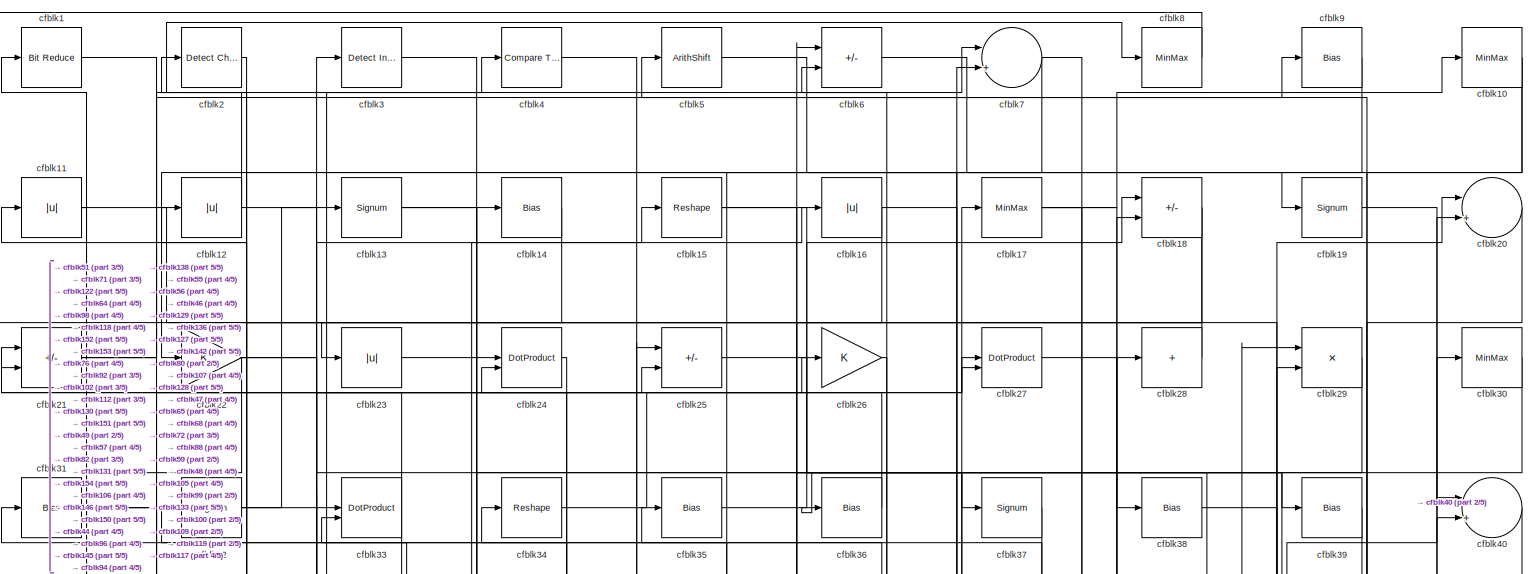
[diagram: root canvas - part 1/5, full width, top band]
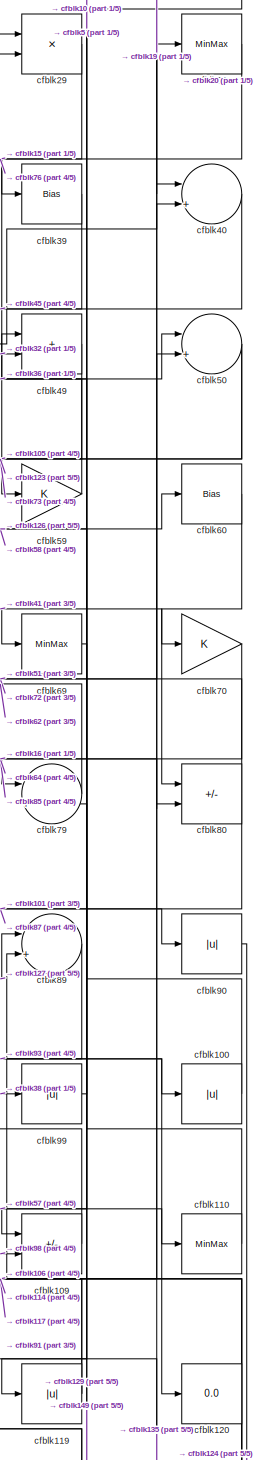
[diagram: root canvas - part 2/5, middle right region]
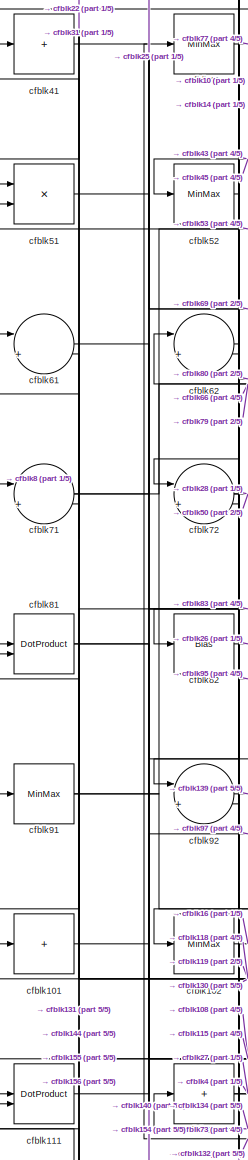
[diagram: root canvas - part 3/5, middle left region]
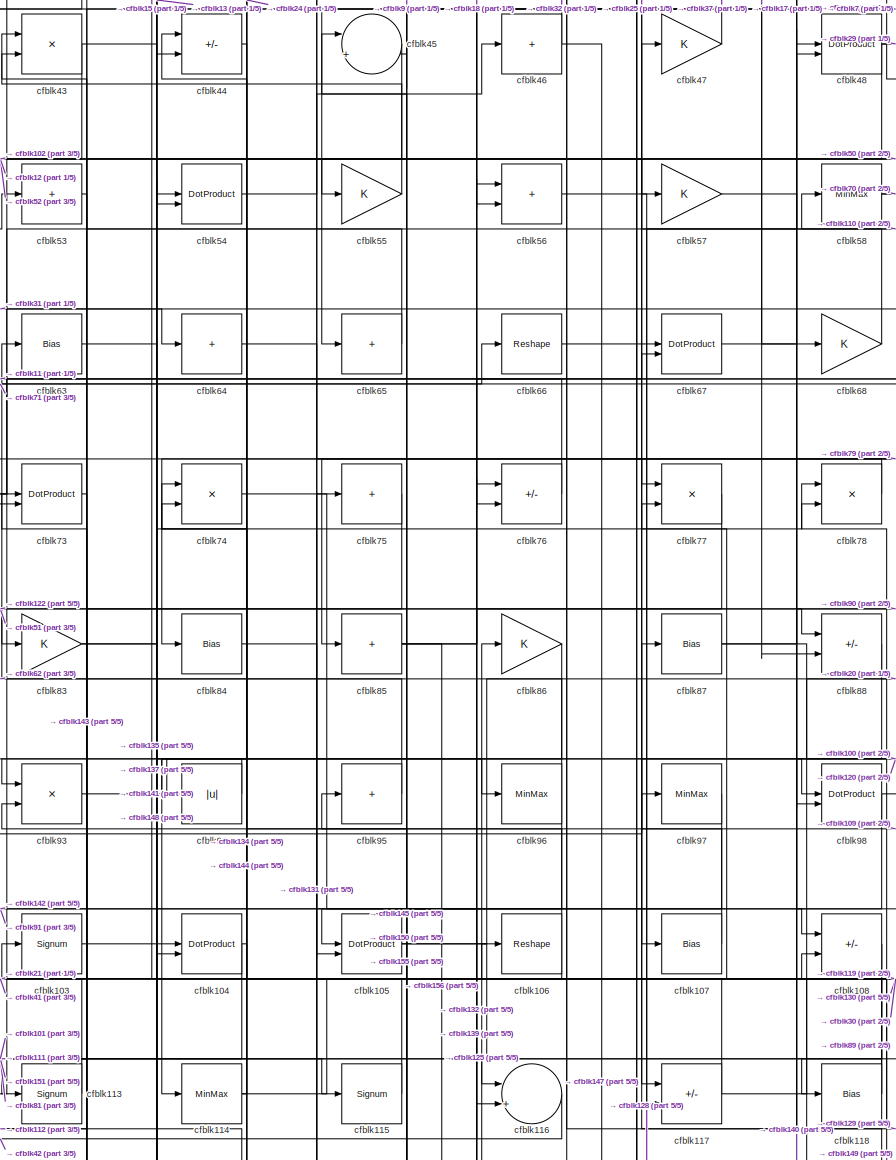
[diagram: root canvas - part 4/5, central region]
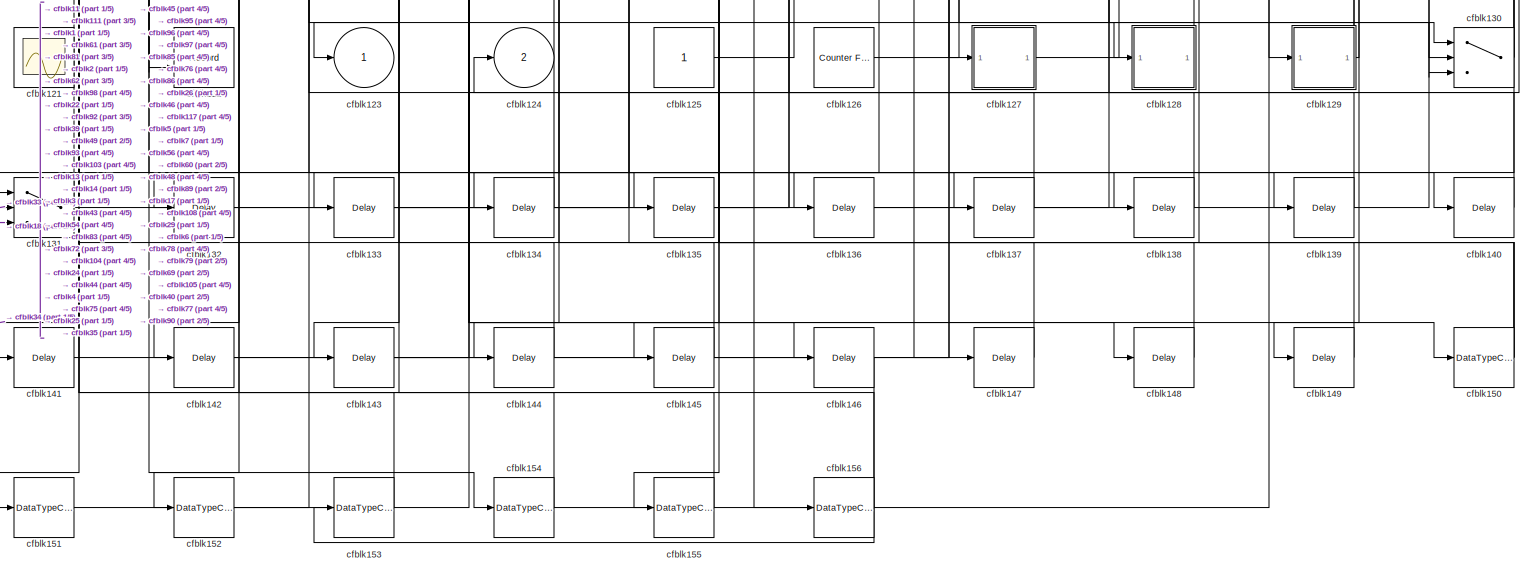
[diagram: root canvas - part 5/5, full width, bottom band]
MODEL slx_2d31b069ee9f
KIND model
CONFIG AbsTol = auto
CONFIG EnableMultiTasking = off
CONFIG FixedStep = auto
CONFIG MaxStep = auto
CONFIG MinStep = auto
CONFIG RelTol = 1e-3
CONFIG SampleTimeConstraint = Unconstrained
CONFIG SolverName = VariableStepAuto
CONFIG StartTime = 0.0
CONFIG StopTime = 10.0
BLOCK [Reference] cfblk1  REF=hdlsllib/Logic and Bit
Operations/Bit Reduce
  SourceBlock = hdlsllib/Logic and Bit\nOperations/Bit Reduce
  SourceType = Bit Reduce
BLOCK [MinMax] cfblk10
BLOCK [Abs] cfblk100
  SaturateOnIntegerOverflow = off
BLOCK [Sum] cfblk101
  IconShape = rectangular
  Inputs = +
BLOCK [MinMax] cfblk102
BLOCK [Signum] cfblk103
BLOCK [DotProduct] cfblk104
  OutDataTypeStr = Inherit: Inherit via internal rule
BLOCK [DotProduct] cfblk105
  OutDataTypeStr = Inherit: Inherit via internal rule
BLOCK [Reshape] cfblk106
BLOCK [Bias] cfblk107
  Bias = 0.0
  SaturateOnIntegerOverflow = off
BLOCK [Sum] cfblk108
  IconShape = rectangular
  Inputs = +-
BLOCK [Sum] cfblk109
  IconShape = rectangular
  Inputs = +-
BLOCK [Abs] cfblk11
  SaturateOnIntegerOverflow = off
BLOCK [MinMax] cfblk110
BLOCK [DotProduct] cfblk111
  OutDataTypeStr = Inherit: Inherit via internal rule
BLOCK [Sum] cfblk112
  IconShape = rectangular
  Inputs = +
BLOCK [Signum] cfblk113
BLOCK [MinMax] cfblk114
BLOCK [Signum] cfblk115
BLOCK [Sum] cfblk116
  Inputs = |++
BLOCK [Sum] cfblk117
  IconShape = rectangular
  Inputs = +-
BLOCK [Bias] cfblk118
  Bias = 0.0
  SaturateOnIntegerOverflow = off
BLOCK [Abs] cfblk119
  SaturateOnIntegerOverflow = off
BLOCK [Abs] cfblk12
  SaturateOnIntegerOverflow = off
BLOCK [Display] cfblk120
  Decimation = 1
BLOCK [Scope] cfblk121
  Floating = on
  NumInputPorts = 1
  ScopeSpecificationString = Simulink.scopes.TimeScopeBlockCfg('CurrentConfiguration', extmgr.ConfigurationSet(extmgr.Configuration('Core','General UI',true,'FigureColor',[0.156862745098039 0.156862745098039 0.156862745098039]),extmgr.Configuration('Core','Source UI',true),extmgr.Configuration('Sources','WiredSimulink',true,'DataLoggingVariableName','ScopeData1','DataLoggingSaveFormat','StructureWithTime','DataLoggingLimitDat...<+2713ch>
BLOCK [Record] cfblk122
  CompatibilityTag = XY
  FileSettingsInternal = {"entries":[{"content":{"excelSettings":{"content":{},"type":"Streamout.ExcelSettings"}},"type":"Streamout.FileSettingStorage","uuid":""}],"packageUris":["http:\/\/schema.mathworks.com\/mf0\/streamout_blocks\/R2020a"],"version":"1.0"}
  Layout = [1 1]
  SignalsInternal = {"entries":[{"content":{"signals":[{"content":{"blockPath":[],"dimensions":[1],"domain":"","lineColor":"#a2142f","plots":[1],"port":1,"signalID":4562,"signalName":"XY Graph:1"},"type":"RecordBlkView.Signal","uuid":""},{"content":{"blockPath":[],"dimensions":[1],"domain":"","lineColor":"#139fff","plots":[1],"port":2,"signalID":4565,"signalName":"XY Graph:2"},"type":"RecordBlkView.Signal","uuid":""}...<+146ch>
  VisualizationBindings = {"xyplotplugin":{"info":[{"series":[{"bindingParametersList":[{"parameter":"X-Axis","signalID":4562,"signalName":"XY Graph:1"},{"parameter":"Y-Axis","signalID":4565,"signalName":"XY Graph:2"}],"seriesID":56059}],"subplotID":1}]}}
  st = -1
BLOCK [Outport] cfblk123
  VectorParamsAs1DForOutWhenUnconnected = off
BLOCK [Outport] cfblk124
  Port = 2
  VectorParamsAs1DForOutWhenUnconnected = off
BLOCK [Constant] cfblk125
  SampleTime = -1
BLOCK [Reference] cfblk126  REF=hdlsllib/Sources/Counter
Free-Running
  SourceBlock = hdlsllib/Sources/Counter\nFree-Running
  SourceType = Counter Free-Running
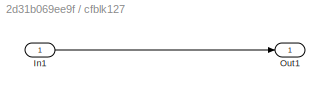
BLOCK [SubSystem] cfblk127
  LibrarySourceBlock = hdlsllib/Ports &\nSubsystems/Subsystem
BLOCK [Inport] cfblk127/In1
BLOCK [Outport] cfblk127/Out1
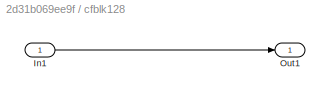
BLOCK [SubSystem] cfblk128
  LibrarySourceBlock = hdlsllib/Ports &\nSubsystems/Subsystem
BLOCK [Inport] cfblk128/In1
BLOCK [Outport] cfblk128/Out1
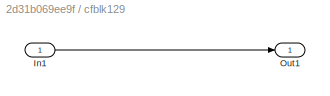
BLOCK [SubSystem] cfblk129
  LibrarySourceBlock = hdlsllib/Ports &\nSubsystems/Subsystem
BLOCK [Inport] cfblk129/In1
BLOCK [Outport] cfblk129/Out1
BLOCK [Signum] cfblk13
BLOCK [Switch] cfblk130
  InputSameDT = off
  SaturateOnIntegerOverflow = off
BLOCK [Switch] cfblk131
  InputSameDT = off
  SaturateOnIntegerOverflow = off
BLOCK [Delay] cfblk132
  InputPortMap = u0
  SampleTime = 1
BLOCK [Delay] cfblk133
  InputPortMap = u0
  SampleTime = 1
BLOCK [Delay] cfblk134
  InputPortMap = u0
  SampleTime = 1
BLOCK [Delay] cfblk135
  InputPortMap = u0
  SampleTime = 1
BLOCK [Delay] cfblk136
  InputPortMap = u0
  SampleTime = 1
BLOCK [Delay] cfblk137
  InputPortMap = u0
  SampleTime = 1
BLOCK [Delay] cfblk138
  InputPortMap = u0
  SampleTime = 1
BLOCK [Delay] cfblk139
  InputPortMap = u0
  SampleTime = 1
BLOCK [Bias] cfblk14
  Bias = 0.0
  SaturateOnIntegerOverflow = off
BLOCK [Delay] cfblk140
  InputPortMap = u0
  SampleTime = 1
BLOCK [Delay] cfblk141
  InputPortMap = u0
  SampleTime = 1
BLOCK [Delay] cfblk142
  InputPortMap = u0
  SampleTime = 1
BLOCK [Delay] cfblk143
  InputPortMap = u0
  SampleTime = 1
BLOCK [Delay] cfblk144
  InputPortMap = u0
  SampleTime = 1
BLOCK [Delay] cfblk145
  InputPortMap = u0
  SampleTime = 1
BLOCK [Delay] cfblk146
  InputPortMap = u0
  SampleTime = 1
BLOCK [Delay] cfblk147
  InputPortMap = u0
  SampleTime = 1
BLOCK [Delay] cfblk148
  InputPortMap = u0
  SampleTime = 1
BLOCK [Delay] cfblk149
  InputPortMap = u0
  SampleTime = 1
BLOCK [Reshape] cfblk15
BLOCK [DataTypeConversion] cfblk150
  RndMeth = Floor
  SaturateOnIntegerOverflow = off
BLOCK [DataTypeConversion] cfblk151
  OutDataTypeStr = uint8
  RndMeth = Floor
  SaturateOnIntegerOverflow = off
BLOCK [DataTypeConversion] cfblk152
  OutDataTypeStr = uint8
  RndMeth = Floor
  SaturateOnIntegerOverflow = off
BLOCK [DataTypeConversion] cfblk153
  OutDataTypeStr = uint8
  RndMeth = Floor
  SaturateOnIntegerOverflow = off
BLOCK [DataTypeConversion] cfblk154
  RndMeth = Floor
  SaturateOnIntegerOverflow = off
BLOCK [DataTypeConversion] cfblk155
  OutDataTypeStr = uint8
  RndMeth = Floor
  SaturateOnIntegerOverflow = off
BLOCK [DataTypeConversion] cfblk156
  OutDataTypeStr = uint8
  RndMeth = Floor
  SaturateOnIntegerOverflow = off
BLOCK [Abs] cfblk16
  SaturateOnIntegerOverflow = off
BLOCK [MinMax] cfblk17
BLOCK [Sum] cfblk18
  IconShape = rectangular
  Inputs = +-
BLOCK [Signum] cfblk19
BLOCK [Reference] cfblk2  REF=simulink/Logic and Bit
Operations/Detect
Change
  LibrarySourceBlock = hdlsllib/Logic and Bit\nOperations/Detect\nChange
  SourceBlock = simulink/Logic and Bit\nOperations/Detect\nChange
  SourceType = Detect Change
BLOCK [Sum] cfblk20
  Inputs = |++
BLOCK [Sum] cfblk21
  IconShape = rectangular
  Inputs = +-
BLOCK [Gain] cfblk22
BLOCK [Abs] cfblk23
  SaturateOnIntegerOverflow = off
BLOCK [DotProduct] cfblk24
  OutDataTypeStr = Inherit: Inherit via internal rule
BLOCK [Sum] cfblk25
  IconShape = rectangular
  Inputs = +-
BLOCK [Gain] cfblk26
BLOCK [DotProduct] cfblk27
  OutDataTypeStr = Inherit: Inherit via internal rule
BLOCK [Sum] cfblk28
  IconShape = rectangular
  Inputs = +
BLOCK [Product] cfblk29
  Inputs = */
  RndMeth = Zero
  SaturateOnIntegerOverflow = on
BLOCK [Reference] cfblk3  REF=simulink/Logic and Bit
Operations/Detect
Increase
  LibrarySourceBlock = hdlsllib/Logic and Bit\nOperations/Detect\nIncrease
  SourceBlock = simulink/Logic and Bit\nOperations/Detect\nIncrease
  SourceType = Detect Increase
BLOCK [MinMax] cfblk30
BLOCK [Bias] cfblk31
  Bias = 0.0
  SaturateOnIntegerOverflow = off
BLOCK [Signum] cfblk32
BLOCK [DotProduct] cfblk33
  OutDataTypeStr = Inherit: Inherit via internal rule
BLOCK [Reshape] cfblk34
BLOCK [Bias] cfblk35
  Bias = 0.0
  SaturateOnIntegerOverflow = off
BLOCK [Bias] cfblk36
  Bias = 0.0
  SaturateOnIntegerOverflow = off
BLOCK [Signum] cfblk37
BLOCK [Bias] cfblk38
  Bias = 0.0
  SaturateOnIntegerOverflow = off
BLOCK [Bias] cfblk39
  Bias = 0.0
  SaturateOnIntegerOverflow = off
BLOCK [Reference] cfblk4  REF=hdlsllib/Logic and Bit
Operations/Compare
To Zero
  SourceBlock = hdlsllib/Logic and Bit\nOperations/Compare\nTo Zero
  SourceType = Compare To Zero
BLOCK [Sum] cfblk40
  Inputs = |++
BLOCK [Sum] cfblk41
  IconShape = rectangular
  Inputs = +
BLOCK [MinMax] cfblk42
BLOCK [Product] cfblk43
  Inputs = */
  RndMeth = Zero
  SaturateOnIntegerOverflow = on
BLOCK [Sum] cfblk44
  IconShape = rectangular
  Inputs = +-
BLOCK [Sum] cfblk45
  Inputs = |++
BLOCK [Sum] cfblk46
  IconShape = rectangular
  Inputs = +
BLOCK [Gain] cfblk47
BLOCK [DotProduct] cfblk48
  OutDataTypeStr = Inherit: Inherit via internal rule
BLOCK [Sum] cfblk49
  IconShape = rectangular
BLOCK [ArithShift] cfblk5
  BitShiftNumber = 8
  InputPortMap = u0
BLOCK [Sum] cfblk50
  Inputs = |++
BLOCK [Product] cfblk51
  Inputs = */
  RndMeth = Zero
  SaturateOnIntegerOverflow = on
BLOCK [MinMax] cfblk52
BLOCK [Sum] cfblk53
  IconShape = rectangular
  Inputs = +
BLOCK [DotProduct] cfblk54
  OutDataTypeStr = Inherit: Inherit via internal rule
BLOCK [Gain] cfblk55
BLOCK [Sum] cfblk56
  IconShape = rectangular
BLOCK [Gain] cfblk57
BLOCK [MinMax] cfblk58
BLOCK [Gain] cfblk59
BLOCK [Sum] cfblk6
  IconShape = rectangular
  Inputs = +-
BLOCK [Bias] cfblk60
  Bias = 0.0
  SaturateOnIntegerOverflow = off
BLOCK [Sum] cfblk61
  Inputs = |++
BLOCK [Sum] cfblk62
  Inputs = |++
BLOCK [Bias] cfblk63
  Bias = 0.0
  SaturateOnIntegerOverflow = off
BLOCK [Sum] cfblk64
  IconShape = rectangular
  Inputs = +
BLOCK [Sum] cfblk65
  IconShape = rectangular
  Inputs = +
BLOCK [Reshape] cfblk66
BLOCK [DotProduct] cfblk67
  OutDataTypeStr = Inherit: Inherit via internal rule
BLOCK [Gain] cfblk68
BLOCK [MinMax] cfblk69
BLOCK [Sum] cfblk7
  Inputs = |++
BLOCK [Gain] cfblk70
BLOCK [Sum] cfblk71
  Inputs = |++
BLOCK [Sum] cfblk72
  Inputs = |++
BLOCK [DotProduct] cfblk73
  OutDataTypeStr = Inherit: Inherit via internal rule
BLOCK [Product] cfblk74
  Inputs = */
  RndMeth = Zero
  SaturateOnIntegerOverflow = on
BLOCK [Sum] cfblk75
  IconShape = rectangular
  Inputs = +
BLOCK [Sum] cfblk76
  IconShape = rectangular
  Inputs = +-
BLOCK [Product] cfblk77
  Inputs = */
  RndMeth = Zero
  SaturateOnIntegerOverflow = on
BLOCK [Product] cfblk78
  Inputs = */
  RndMeth = Zero
  SaturateOnIntegerOverflow = on
BLOCK [Sum] cfblk79
  Inputs = |++
BLOCK [MinMax] cfblk8
BLOCK [Sum] cfblk80
  IconShape = rectangular
  Inputs = +-
BLOCK [DotProduct] cfblk81
  OutDataTypeStr = Inherit: Inherit via internal rule
BLOCK [Bias] cfblk82
  Bias = 0.0
  SaturateOnIntegerOverflow = off
BLOCK [Gain] cfblk83
BLOCK [Bias] cfblk84
  Bias = 0.0
  SaturateOnIntegerOverflow = off
BLOCK [Sum] cfblk85
  IconShape = rectangular
  Inputs = +
BLOCK [Gain] cfblk86
BLOCK [Bias] cfblk87
  Bias = 0.0
  SaturateOnIntegerOverflow = off
BLOCK [Sum] cfblk88
  IconShape = rectangular
  Inputs = +-
BLOCK [Sum] cfblk89
  Inputs = |++
BLOCK [Bias] cfblk9
  Bias = 0.0
  SaturateOnIntegerOverflow = off
BLOCK [Abs] cfblk90
  SaturateOnIntegerOverflow = off
BLOCK [MinMax] cfblk91
BLOCK [Sum] cfblk92
  Inputs = |++
BLOCK [Product] cfblk93
  Inputs = */
  RndMeth = Zero
  SaturateOnIntegerOverflow = on
BLOCK [Abs] cfblk94
  SaturateOnIntegerOverflow = off
BLOCK [Sum] cfblk95
  IconShape = rectangular
  Inputs = +
BLOCK [MinMax] cfblk96
BLOCK [MinMax] cfblk97
BLOCK [DotProduct] cfblk98
  OutDataTypeStr = Inherit: Inherit via internal rule
BLOCK [Abs] cfblk99
  SaturateOnIntegerOverflow = off
LINE cfblk100:1 -> cfblk5:1
LINE cfblk101:1 -> cfblk115:1
LINE cfblk102:1 -> cfblk16:1
LINE cfblk103:1 -> cfblk135:1
NET cfblk104:1 -> cfblk144:1, cfblk151:1
NET cfblk105:1 -> cfblk130:2, cfblk20:1
NET cfblk106:1 -> cfblk15:1, cfblk73:1
LINE cfblk107:1 -> cfblk44:1
NET cfblk108:1 -> cfblk111:1, cfblk118:1
LINE cfblk109:1 -> cfblk87:1
NET cfblk10:1 -> cfblk119:1, cfblk92:1
LINE cfblk110:1 -> cfblk58:1
LINE cfblk111:1 -> cfblk97:1
NET cfblk112:1 -> cfblk27:2, cfblk4:1
LINE cfblk113:1 -> cfblk103:1
NET cfblk114:1 -> cfblk74:2, cfblk89:2
LINE cfblk115:1 -> cfblk74:1
LINE cfblk116:1 -> cfblk42:1
NET cfblk117:1 -> cfblk21:2, cfblk30:1
NET cfblk118:1 -> cfblk12:1, cfblk41:1
NET cfblk119:1 -> cfblk106:1, cfblk91:1
NET cfblk11:1 -> cfblk129:1, cfblk131:1
LINE cfblk125:1 -> cfblk86:1
LINE cfblk126:1 -> cfblk60:1
LINE cfblk127/In1:1 -> cfblk127/Out1:1
LINE cfblk127:1 -> cfblk89:1
LINE cfblk128/In1:1 -> cfblk128/Out1:1
LINE cfblk128:1 -> cfblk17:1
LINE cfblk129/In1:1 -> cfblk129/Out1:1
NET cfblk129:1 -> cfblk6:2, cfblk78:2, cfblk79:2
NET cfblk12:1 -> cfblk57:1, cfblk8:1
NET cfblk130:1 -> cfblk141:1, cfblk34:1, cfblk77:2, cfblk81:2
NET cfblk131:1 -> cfblk75:1, cfblk81:1
LINE cfblk132:1 -> cfblk76:1
LINE cfblk133:1 -> cfblk6:1
LINE cfblk134:1 -> cfblk72:2
LINE cfblk135:1 -> cfblk40:2
LINE cfblk136:1 -> cfblk18:2
LINE cfblk137:1 -> cfblk54:1
LINE cfblk138:1 -> cfblk33:1
LINE cfblk139:1 -> cfblk56:1
NET cfblk13:1 -> cfblk146:1, cfblk96:1
LINE cfblk140:1 -> cfblk48:1
LINE cfblk141:1 -> cfblk104:2
LINE cfblk142:1 -> cfblk7:2
LINE cfblk143:1 -> cfblk117:2
LINE cfblk144:1 -> cfblk111:2
LINE cfblk145:1 -> cfblk24:2
LINE cfblk146:1 -> cfblk153:1
LINE cfblk147:1 -> cfblk93:2
LINE cfblk148:1 -> cfblk45:1
LINE cfblk149:1 -> cfblk108:2
LINE cfblk14:1 -> cfblk72:1
NET cfblk150:1 -> cfblk25:1, cfblk35:1, cfblk95:1
LINE cfblk151:1 -> cfblk3:1
LINE cfblk152:1 -> cfblk14:1
LINE cfblk153:1 -> cfblk2:1
NET cfblk154:1 -> cfblk29:2, cfblk33:2
LINE cfblk155:1 -> cfblk61:1
LINE cfblk156:1 -> cfblk61:2
NET cfblk15:1 -> cfblk37:1, cfblk59:1
NET cfblk16:1 -> cfblk80:2, cfblk92:2
NET cfblk17:1 -> cfblk10:1, cfblk130:1, cfblk88:2
NET cfblk18:1 -> cfblk131:3, cfblk56:2
LINE cfblk19:1 -> cfblk40:1
LINE cfblk1:1 -> cfblk122:1
LINE cfblk20:1 -> cfblk109:1
NET cfblk21:1 -> cfblk7:1, cfblk9:1
NET cfblk22:1 -> cfblk130:3, cfblk39:1, cfblk71:2
LINE cfblk23:1 -> cfblk24:1
LINE cfblk24:1 -> cfblk94:1
LINE cfblk25:1 -> cfblk107:1
LINE cfblk26:1 -> cfblk136:1
LINE cfblk27:1 -> cfblk38:1
LINE cfblk28:1 -> cfblk23:1
LINE cfblk29:1 -> cfblk44:2
LINE cfblk2:1 -> cfblk152:1
LINE cfblk30:1 -> cfblk76:2
NET cfblk31:1 -> cfblk51:1, cfblk64:1, cfblk98:1
NET cfblk32:1 -> cfblk13:1, cfblk49:2
NET cfblk33:1 -> cfblk131:2, cfblk21:1
LINE cfblk34:1 -> cfblk27:1
LINE cfblk35:1 -> cfblk18:1
LINE cfblk36:1 -> cfblk1:1
LINE cfblk37:1 -> cfblk65:1
LINE cfblk38:1 -> cfblk99:1
LINE cfblk39:1 -> cfblk133:1
LINE cfblk3:1 -> cfblk150:1
LINE cfblk40:1 -> cfblk45:2
LINE cfblk41:1 -> cfblk69:1
LINE cfblk42:1 -> cfblk77:1
NET cfblk43:1 -> cfblk137:1, cfblk52:1
LINE cfblk44:1 -> cfblk134:1
LINE cfblk45:1 -> cfblk102:1
NET cfblk46:1 -> cfblk147:1, cfblk32:1
LINE cfblk47:1 -> cfblk31:1
NET cfblk48:1 -> cfblk20:2, cfblk29:1, cfblk54:2
LINE cfblk49:1 -> cfblk123:1
LINE cfblk4:1 -> cfblk138:1
NET cfblk50:1 -> cfblk105:1, cfblk73:2
LINE cfblk51:1 -> cfblk83:1
LINE cfblk52:1 -> cfblk82:1
LINE cfblk53:1 -> cfblk113:1
LINE cfblk54:1 -> cfblk46:1
LINE cfblk55:1 -> cfblk43:1
LINE cfblk56:1 -> cfblk128:1
LINE cfblk57:1 -> cfblk110:1
NET cfblk58:1 -> cfblk50:1, cfblk70:1
LINE cfblk59:1 -> cfblk36:1
LINE cfblk5:1 -> cfblk127:1
LINE cfblk60:1 -> cfblk80:1
LINE cfblk61:1 -> cfblk154:1
LINE cfblk62:1 -> cfblk132:1
LINE cfblk63:1 -> cfblk104:1
LINE cfblk64:1 -> cfblk79:1
LINE cfblk65:1 -> cfblk43:2
LINE cfblk66:1 -> cfblk67:1
LINE cfblk67:1 -> cfblk48:2
LINE cfblk68:1 -> cfblk47:1
LINE cfblk69:1 -> cfblk149:1
LINE cfblk6:1 -> cfblk19:1
LINE cfblk70:1 -> cfblk85:1
NET cfblk71:1 -> cfblk25:2, cfblk66:1
NET cfblk72:1 -> cfblk28:1, cfblk50:2
LINE cfblk73:1 -> cfblk112:1
LINE cfblk74:1 -> cfblk108:1
LINE cfblk75:1 -> cfblk143:1
LINE cfblk76:1 -> cfblk11:1
LINE cfblk77:1 -> cfblk122:2
LINE cfblk78:1 -> cfblk84:1
LINE cfblk79:1 -> cfblk62:1
NET cfblk7:1 -> cfblk22:1, cfblk68:1
NET cfblk80:1 -> cfblk101:1, cfblk51:2
NET cfblk81:1 -> cfblk116:1, cfblk140:1
LINE cfblk82:1 -> cfblk26:1
NET cfblk83:1 -> cfblk148:1, cfblk78:1
LINE cfblk84:1 -> cfblk105:2
NET cfblk85:1 -> cfblk156:1, cfblk67:2, cfblk88:1
LINE cfblk86:1 -> cfblk114:1
NET cfblk87:1 -> cfblk120:1, cfblk90:1
LINE cfblk88:1 -> cfblk98:2
LINE cfblk89:1 -> cfblk117:1
LINE cfblk8:1 -> cfblk71:1
LINE cfblk90:1 -> cfblk124:1
NET cfblk91:1 -> cfblk116:2, cfblk53:1
LINE cfblk92:1 -> cfblk139:1
LINE cfblk93:1 -> cfblk100:1
LINE cfblk94:1 -> cfblk93:1
LINE cfblk95:1 -> cfblk62:2
NET cfblk96:1 -> cfblk145:1, cfblk63:1
LINE cfblk97:1 -> cfblk155:1
NET cfblk98:1 -> cfblk109:2, cfblk142:1
LINE cfblk99:1 -> cfblk49:1
LINE cfblk9:1 -> cfblk55:1
note: NET lines group one-source signal fan-out (src -> all destinations, sorted); 1:1 wires keep LINE
